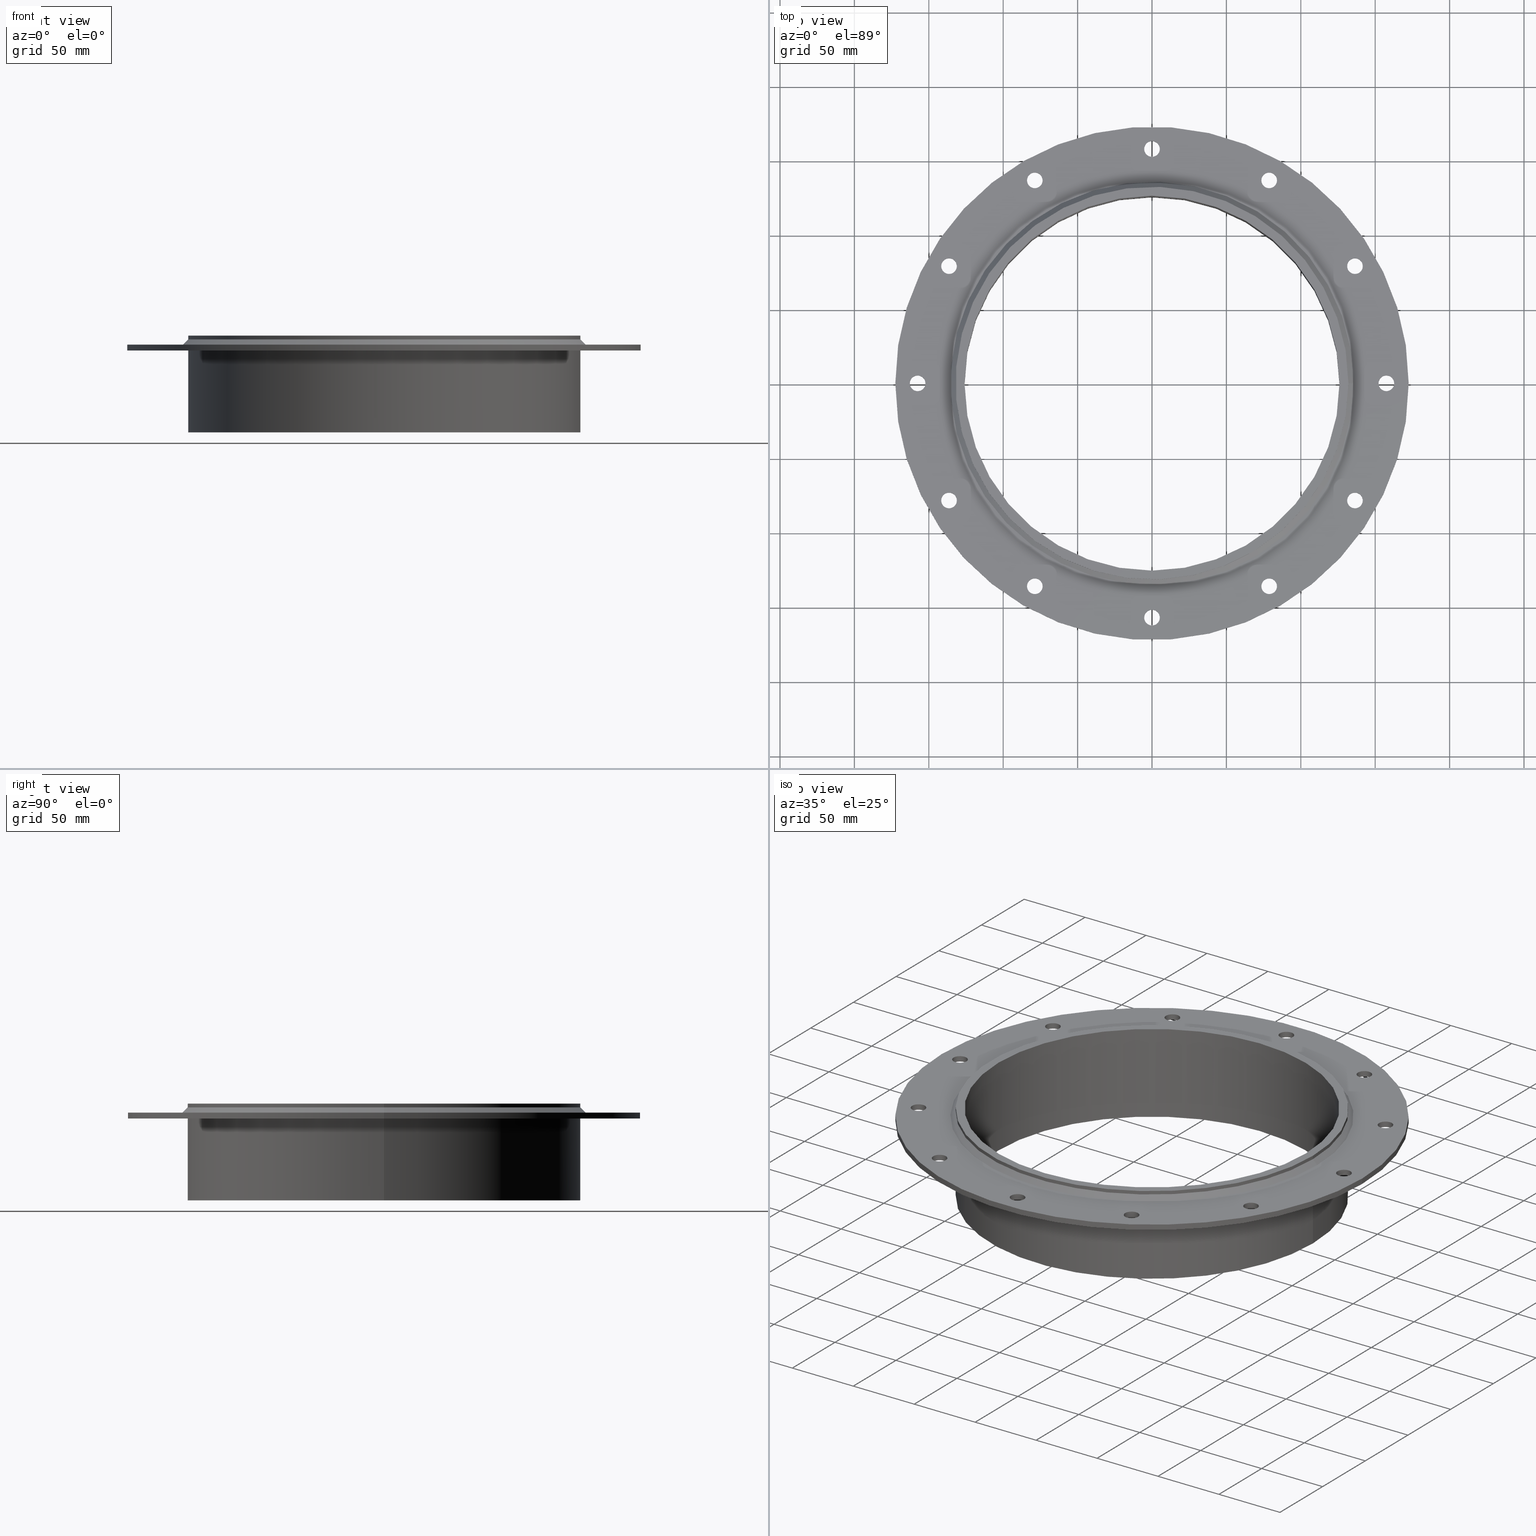
[diagram: canonical four-view strip — front | top / right | iso, engineering-drawing reading convention]
A machine part, canonical four-view strip (front | top / right | iso — engineering-drawing reading convention). The complete STEP part file that produces these views, byte-faithful:
ISO-10303-21;
HEADER;
/****************************************************************
 * Generated by software with PDElib inside                    *
 * PDElib Version v51a, created Wed 11/30/2011                  *
 * ITI Transcendata (http://www.transcendata.com/)              *
 ****************************************************************/
FILE_DESCRIPTION((''),'2;1');
FILE_NAME('C:\\Users\\se-mareng\\Desktop\\RTD\\SLF_\\step\\SLFRS250.stp','2017-02-08T07:40:14',('se-mareng'),(''),'Autodesk Inventor 2013','Autodesk Inventor 2013','');
FILE_SCHEMA(('AUTOMOTIVE_DESIGN { 1 0 10303 214 1 1 1 1 }'));
ENDSEC;
DATA;
#5=APPLICATION_CONTEXT('automotive design');
#6=APPLICATION_PROTOCOL_DEFINITION('International Standard','automotive_design',2001,#5);
#7=PRODUCT_CONTEXT('',#5,'mechanical');
#8=PRODUCT('SLFRS250_old','SLFRS250_old',$,(#7));
#9=PRODUCT_RELATED_PRODUCT_CATEGORY('part',$,(#8));
#10=PRODUCT_DEFINITION_FORMATION('',$,#8);
#11=PRODUCT_DEFINITION_CONTEXT('part definition',#5,'design');
#12=PRODUCT_DEFINITION('',$,#10,#11);
#18=(NAMED_UNIT(*)PLANE_ANGLE_UNIT()SI_UNIT($,.RADIAN.));
#19=DIMENSIONAL_EXPONENTS(0.0,0.0,0.0,0.0,0.0,0.0,0.0);
#20=PLANE_ANGLE_MEASURE_WITH_UNIT(PLANE_ANGLE_MEASURE(0.0174532925),#18);
#24=(CONVERSION_BASED_UNIT('DEGREE',#20)NAMED_UNIT(#19)PLANE_ANGLE_UNIT());
#28=(NAMED_UNIT(*)SI_UNIT($,.STERADIAN.)SOLID_ANGLE_UNIT());
#32=(LENGTH_UNIT()NAMED_UNIT(*)SI_UNIT(.MILLI.,.METRE.));
#34=UNCERTAINTY_MEASURE_WITH_UNIT(LENGTH_MEASURE(0.01),#32,'DISTANCE_ACCURACY_VALUE','');
#36=(GEOMETRIC_REPRESENTATION_CONTEXT(3)GLOBAL_UNCERTAINTY_ASSIGNED_CONTEXT((#34))GLOBAL_UNIT_ASSIGNED_CONTEXT((#24,#28,#32))REPRESENTATION_CONTEXT('None','None'));
#37=AXIS2_PLACEMENT_3D('',#38,#39,#40);
#38=CARTESIAN_POINT('',(0.0,0.0,0.0));
#39=DIRECTION('',(0.0,0.0,1.0));
#40=DIRECTION('',(1.0,0.0,0.0));
#41=SHAPE_REPRESENTATION('',(#37),#36);
#42=PRODUCT_DEFINITION_SHAPE('','',#12);
#43=SHAPE_DEFINITION_REPRESENTATION(#42,#41);
#49=(NAMED_UNIT(*)PLANE_ANGLE_UNIT()SI_UNIT($,.RADIAN.));
#50=DIMENSIONAL_EXPONENTS(0.0,0.0,0.0,0.0,0.0,0.0,0.0);
#51=PLANE_ANGLE_MEASURE_WITH_UNIT(PLANE_ANGLE_MEASURE(0.0174532925),#49);
#55=(CONVERSION_BASED_UNIT('DEGREE',#51)NAMED_UNIT(#50)PLANE_ANGLE_UNIT());
#59=(NAMED_UNIT(*)SI_UNIT($,.STERADIAN.)SOLID_ANGLE_UNIT());
#63=(LENGTH_UNIT()NAMED_UNIT(*)SI_UNIT(.MILLI.,.METRE.));
#65=UNCERTAINTY_MEASURE_WITH_UNIT(LENGTH_MEASURE(0.000001),#63,'DISTANCE_ACCURACY_VALUE','');
#67=(GEOMETRIC_REPRESENTATION_CONTEXT(3)GLOBAL_UNCERTAINTY_ASSIGNED_CONTEXT((#65))GLOBAL_UNIT_ASSIGNED_CONTEXT((#55,#59,#63))REPRESENTATION_CONTEXT('','3D'));
#68=CARTESIAN_POINT('',(-136.39900109604909,78.750000000000028,-498.21438418640304));
#69=DIRECTION('',(0.0,0.0,1.0));
#70=DIRECTION('',(1.0,0.0,0.0));
#71=AXIS2_PLACEMENT_3D('',#68,#69,#70);
#72=CYLINDRICAL_SURFACE('',#71,5.25);
#73=CARTESIAN_POINT('',(-141.64900109604909,78.750000000000028,-10.0));
#74=VERTEX_POINT('',#73);
#75=CARTESIAN_POINT('',(-136.39900109604909,78.750000000000028,-10.0));
#76=DIRECTION('',(0.0,0.0,1.0));
#77=DIRECTION('',(1.0,0.0,0.0));
#78=AXIS2_PLACEMENT_3D('',#75,#76,#77);
#79=CIRCLE('',#78,5.25);
#80=EDGE_CURVE('',#74,#74,#79,.T.);
#81=ORIENTED_EDGE('',*,*,#80,.F.);
#82=EDGE_LOOP('',(#81));
#83=FACE_OUTER_BOUND('',#82,.T.);
#84=CARTESIAN_POINT('',(-131.14900109604909,78.750000000000028,-6.000000000000004));
#85=VERTEX_POINT('',#84);
#86=CARTESIAN_POINT('',(-136.39900109604909,78.750000000000028,-6.000000000000014));
#87=DIRECTION('',(0.0,0.0,-1.0));
#88=DIRECTION('',(1.0,0.0,0.0));
#89=AXIS2_PLACEMENT_3D('',#86,#87,#88);
#90=CIRCLE('',#89,5.25);
#91=EDGE_CURVE('',#85,#85,#90,.T.);
#92=ORIENTED_EDGE('',*,*,#91,.F.);
#93=EDGE_LOOP('',(#92));
#94=FACE_BOUND('',#93,.T.);
#95=ADVANCED_FACE('',(#83,#94),#72,.F.);
#96=CARTESIAN_POINT('',(-136.39900109604912,-78.749999999999972,-498.21438418640304));
#97=DIRECTION('',(0.0,0.0,1.0));
#98=DIRECTION('',(1.0,0.0,0.0));
#99=AXIS2_PLACEMENT_3D('',#96,#97,#98);
#100=CYLINDRICAL_SURFACE('',#99,5.25);
#101=CARTESIAN_POINT('',(-141.64900109604912,-78.749999999999972,-10.0));
#102=VERTEX_POINT('',#101);
#103=CARTESIAN_POINT('',(-136.39900109604912,-78.749999999999972,-10.0));
#104=DIRECTION('',(0.0,0.0,1.0));
#105=DIRECTION('',(1.0,0.0,0.0));
#106=AXIS2_PLACEMENT_3D('',#103,#104,#105);
#107=CIRCLE('',#106,5.25);
#108=EDGE_CURVE('',#102,#102,#107,.T.);
#109=ORIENTED_EDGE('',*,*,#108,.F.);
#110=EDGE_LOOP('',(#109));
#111=FACE_OUTER_BOUND('',#110,.T.);
#112=CARTESIAN_POINT('',(-131.14900109604912,-78.749999999999972,-6.000000000000004));
#113=VERTEX_POINT('',#112);
#114=CARTESIAN_POINT('',(-136.39900109604912,-78.749999999999972,-6.000000000000014));
#115=DIRECTION('',(0.0,0.0,-1.0));
#116=DIRECTION('',(1.0,0.0,0.0));
#117=AXIS2_PLACEMENT_3D('',#114,#115,#116);
#118=CIRCLE('',#117,5.25);
#119=EDGE_CURVE('',#113,#113,#118,.T.);
#120=ORIENTED_EDGE('',*,*,#119,.F.);
#121=EDGE_LOOP('',(#120));
#122=FACE_BOUND('',#121,.T.);
#123=ADVANCED_FACE('',(#111,#122),#100,.F.);
#124=CARTESIAN_POINT('',(-1.776357E-014,-157.5,-498.21438418640304));
#125=DIRECTION('',(0.0,0.0,1.0));
#126=DIRECTION('',(1.0,0.0,0.0));
#127=AXIS2_PLACEMENT_3D('',#124,#125,#126);
#128=CYLINDRICAL_SURFACE('',#127,5.25);
#129=CARTESIAN_POINT('',(-5.250000000000018,-157.5,-10.0));
#130=VERTEX_POINT('',#129);
#131=CARTESIAN_POINT('',(-1.776357E-014,-157.5,-10.0));
#132=DIRECTION('',(0.0,0.0,1.0));
#133=DIRECTION('',(1.0,0.0,0.0));
#134=AXIS2_PLACEMENT_3D('',#131,#132,#133);
#135=CIRCLE('',#134,5.25);
#136=EDGE_CURVE('',#130,#130,#135,.T.);
#137=ORIENTED_EDGE('',*,*,#136,.F.);
#138=EDGE_LOOP('',(#137));
#139=FACE_OUTER_BOUND('',#138,.T.);
#140=CARTESIAN_POINT('',(5.249999999999982,-157.5,-6.000000000000004));
#141=VERTEX_POINT('',#140);
#142=CARTESIAN_POINT('',(-1.776357E-014,-157.5,-6.000000000000014));
#143=DIRECTION('',(0.0,0.0,-1.0));
#144=DIRECTION('',(1.0,0.0,0.0));
#145=AXIS2_PLACEMENT_3D('',#142,#143,#144);
#146=CIRCLE('',#145,5.25);
#147=EDGE_CURVE('',#141,#141,#146,.T.);
#148=ORIENTED_EDGE('',*,*,#147,.F.);
#149=EDGE_LOOP('',(#148));
#150=FACE_BOUND('',#149,.T.);
#151=ADVANCED_FACE('',(#139,#150),#128,.F.);
#152=CARTESIAN_POINT('',(136.39900109604903,-78.750000000000071,-498.21438418640304));
#153=DIRECTION('',(0.0,0.0,1.0));
#154=DIRECTION('',(1.0,0.0,0.0));
#155=AXIS2_PLACEMENT_3D('',#152,#153,#154);
#156=CYLINDRICAL_SURFACE('',#155,5.25);
#157=CARTESIAN_POINT('',(131.14900109604903,-78.750000000000071,-10.0));
#158=VERTEX_POINT('',#157);
#159=CARTESIAN_POINT('',(136.39900109604903,-78.750000000000071,-10.0));
#160=DIRECTION('',(0.0,0.0,1.0));
#161=DIRECTION('',(1.0,0.0,0.0));
#162=AXIS2_PLACEMENT_3D('',#159,#160,#161);
#163=CIRCLE('',#162,5.25);
#164=EDGE_CURVE('',#158,#158,#163,.T.);
#165=ORIENTED_EDGE('',*,*,#164,.F.);
#166=EDGE_LOOP('',(#165));
#167=FACE_OUTER_BOUND('',#166,.T.);
#168=CARTESIAN_POINT('',(141.64900109604903,-78.750000000000071,-6.000000000000004));
#169=VERTEX_POINT('',#168);
#170=CARTESIAN_POINT('',(136.39900109604903,-78.750000000000071,-6.000000000000014));
#171=DIRECTION('',(0.0,0.0,-1.0));
#172=DIRECTION('',(1.0,0.0,0.0));
#173=AXIS2_PLACEMENT_3D('',#170,#171,#172);
#174=CIRCLE('',#173,5.25);
#175=EDGE_CURVE('',#169,#169,#174,.T.);
#176=ORIENTED_EDGE('',*,*,#175,.F.);
#177=EDGE_LOOP('',(#176));
#178=FACE_BOUND('',#177,.T.);
#179=ADVANCED_FACE('',(#167,#178),#156,.F.);
#180=CARTESIAN_POINT('',(136.39900109604918,78.749999999999872,-498.21438418640304));
#181=DIRECTION('',(0.0,0.0,1.0));
#182=DIRECTION('',(1.0,0.0,0.0));
#183=AXIS2_PLACEMENT_3D('',#180,#181,#182);
#184=CYLINDRICAL_SURFACE('',#183,5.25);
#185=CARTESIAN_POINT('',(131.14900109604915,78.749999999999872,-10.0));
#186=VERTEX_POINT('',#185);
#187=CARTESIAN_POINT('',(136.39900109604918,78.749999999999872,-10.0));
#188=DIRECTION('',(0.0,0.0,1.0));
#189=DIRECTION('',(1.0,0.0,0.0));
#190=AXIS2_PLACEMENT_3D('',#187,#188,#189);
#191=CIRCLE('',#190,5.25);
#192=EDGE_CURVE('',#186,#186,#191,.T.);
#193=ORIENTED_EDGE('',*,*,#192,.F.);
#194=EDGE_LOOP('',(#193));
#195=FACE_OUTER_BOUND('',#194,.T.);
#196=CARTESIAN_POINT('',(141.64900109604918,78.749999999999872,-6.000000000000004));
#197=VERTEX_POINT('',#196);
#198=CARTESIAN_POINT('',(136.39900109604918,78.749999999999872,-6.000000000000014));
#199=DIRECTION('',(0.0,0.0,-1.0));
#200=DIRECTION('',(1.0,0.0,0.0));
#201=AXIS2_PLACEMENT_3D('',#198,#199,#200);
#202=CIRCLE('',#201,5.25);
#203=EDGE_CURVE('',#197,#197,#202,.T.);
#204=ORIENTED_EDGE('',*,*,#203,.F.);
#205=EDGE_LOOP('',(#204));
#206=FACE_BOUND('',#205,.T.);
#207=ADVANCED_FACE('',(#195,#206),#184,.F.);
#208=CARTESIAN_POINT('',(0.0,157.5,-498.21438418640304));
#209=DIRECTION('',(0.0,0.0,1.0));
#210=DIRECTION('',(1.0,0.0,0.0));
#211=AXIS2_PLACEMENT_3D('',#208,#209,#210);
#212=CYLINDRICAL_SURFACE('',#211,5.25);
#213=CARTESIAN_POINT('',(-5.25,157.5,-10.0));
#214=VERTEX_POINT('',#213);
#215=CARTESIAN_POINT('',(0.0,157.5,-10.0));
#216=DIRECTION('',(0.0,0.0,1.0));
#217=DIRECTION('',(1.0,0.0,0.0));
#218=AXIS2_PLACEMENT_3D('',#215,#216,#217);
#219=CIRCLE('',#218,5.25);
#220=EDGE_CURVE('',#214,#214,#219,.T.);
#221=ORIENTED_EDGE('',*,*,#220,.F.);
#222=EDGE_LOOP('',(#221));
#223=FACE_OUTER_BOUND('',#222,.T.);
#224=CARTESIAN_POINT('',(5.25,157.5,-6.000000000000004));
#225=VERTEX_POINT('',#224);
#226=CARTESIAN_POINT('',(0.0,157.5,-6.000000000000014));
#227=DIRECTION('',(0.0,0.0,-1.0));
#228=DIRECTION('',(1.0,0.0,0.0));
#229=AXIS2_PLACEMENT_3D('',#226,#227,#228);
#230=CIRCLE('',#229,5.25);
#231=EDGE_CURVE('',#225,#225,#230,.T.);
#232=ORIENTED_EDGE('',*,*,#231,.F.);
#233=EDGE_LOOP('',(#232));
#234=FACE_BOUND('',#233,.T.);
#235=ADVANCED_FACE('',(#223,#234),#212,.F.);
#236=CARTESIAN_POINT('',(78.750000000000071,136.39900109604903,-498.21438418640304));
#237=DIRECTION('',(0.0,0.0,1.0));
#238=DIRECTION('',(1.0,0.0,0.0));
#239=AXIS2_PLACEMENT_3D('',#236,#237,#238);
#240=CYLINDRICAL_SURFACE('',#239,5.25);
#241=CARTESIAN_POINT('',(73.500000000000071,136.39900109604903,-10.0));
#242=VERTEX_POINT('',#241);
#243=CARTESIAN_POINT('',(78.750000000000071,136.39900109604903,-10.0));
#244=DIRECTION('',(0.0,0.0,1.0));
#245=DIRECTION('',(1.0,0.0,0.0));
#246=AXIS2_PLACEMENT_3D('',#243,#244,#245);
#247=CIRCLE('',#246,5.25);
#248=EDGE_CURVE('',#242,#242,#247,.T.);
#249=ORIENTED_EDGE('',*,*,#248,.F.);
#250=EDGE_LOOP('',(#249));
#251=FACE_OUTER_BOUND('',#250,.T.);
#252=CARTESIAN_POINT('',(84.000000000000071,136.39900109604903,-6.000000000000004));
#253=VERTEX_POINT('',#252);
#254=CARTESIAN_POINT('',(78.750000000000071,136.39900109604903,-6.000000000000014));
#255=DIRECTION('',(0.0,0.0,-1.0));
#256=DIRECTION('',(1.0,0.0,0.0));
#257=AXIS2_PLACEMENT_3D('',#254,#255,#256);
#258=CIRCLE('',#257,5.25);
#259=EDGE_CURVE('',#253,#253,#258,.T.);
#260=ORIENTED_EDGE('',*,*,#259,.F.);
#261=EDGE_LOOP('',(#260));
#262=FACE_BOUND('',#261,.T.);
#263=ADVANCED_FACE('',(#251,#262),#240,.F.);
#264=CARTESIAN_POINT('',(157.5,-3.552714E-014,-498.21438418640304));
#265=DIRECTION('',(0.0,0.0,1.0));
#266=DIRECTION('',(1.0,0.0,0.0));
#267=AXIS2_PLACEMENT_3D('',#264,#265,#266);
#268=CYLINDRICAL_SURFACE('',#267,5.25);
#269=CARTESIAN_POINT('',(152.25,-3.617008E-014,-10.0));
#270=VERTEX_POINT('',#269);
#271=CARTESIAN_POINT('',(157.5,-3.552714E-014,-10.0));
#272=DIRECTION('',(0.0,0.0,1.0));
#273=DIRECTION('',(1.0,0.0,0.0));
#274=AXIS2_PLACEMENT_3D('',#271,#272,#273);
#275=CIRCLE('',#274,5.25);
#276=EDGE_CURVE('',#270,#270,#275,.T.);
#277=ORIENTED_EDGE('',*,*,#276,.F.);
#278=EDGE_LOOP('',(#277));
#279=FACE_OUTER_BOUND('',#278,.T.);
#280=CARTESIAN_POINT('',(162.75,-3.552714E-014,-6.000000000000004));
#281=VERTEX_POINT('',#280);
#282=CARTESIAN_POINT('',(157.5,-3.552714E-014,-6.000000000000014));
#283=DIRECTION('',(0.0,0.0,-1.0));
#284=DIRECTION('',(1.0,0.0,0.0));
#285=AXIS2_PLACEMENT_3D('',#282,#283,#284);
#286=CIRCLE('',#285,5.25);
#287=EDGE_CURVE('',#281,#281,#286,.T.);
#288=ORIENTED_EDGE('',*,*,#287,.F.);
#289=EDGE_LOOP('',(#288));
#290=FACE_BOUND('',#289,.T.);
#291=ADVANCED_FACE('',(#279,#290),#268,.F.);
#292=CARTESIAN_POINT('',(78.749999999999972,-136.39900109604912,-498.21438418640304));
#293=DIRECTION('',(0.0,0.0,1.0));
#294=DIRECTION('',(1.0,0.0,0.0));
#295=AXIS2_PLACEMENT_3D('',#292,#293,#294);
#296=CYLINDRICAL_SURFACE('',#295,5.25);
#297=CARTESIAN_POINT('',(73.499999999999972,-136.39900109604912,-10.0));
#298=VERTEX_POINT('',#297);
#299=CARTESIAN_POINT('',(78.749999999999972,-136.39900109604912,-10.0));
#300=DIRECTION('',(0.0,0.0,1.0));
#301=DIRECTION('',(1.0,0.0,0.0));
#302=AXIS2_PLACEMENT_3D('',#299,#300,#301);
#303=CIRCLE('',#302,5.25);
#304=EDGE_CURVE('',#298,#298,#303,.T.);
#305=ORIENTED_EDGE('',*,*,#304,.F.);
#306=EDGE_LOOP('',(#305));
#307=FACE_OUTER_BOUND('',#306,.T.);
#308=CARTESIAN_POINT('',(83.999999999999972,-136.39900109604912,-6.000000000000004));
#309=VERTEX_POINT('',#308);
#310=CARTESIAN_POINT('',(78.749999999999972,-136.39900109604912,-6.000000000000014));
#311=DIRECTION('',(0.0,0.0,-1.0));
#312=DIRECTION('',(1.0,0.0,0.0));
#313=AXIS2_PLACEMENT_3D('',#310,#311,#312);
#314=CIRCLE('',#313,5.25);
#315=EDGE_CURVE('',#309,#309,#314,.T.);
#316=ORIENTED_EDGE('',*,*,#315,.F.);
#317=EDGE_LOOP('',(#316));
#318=FACE_BOUND('',#317,.T.);
#319=ADVANCED_FACE('',(#307,#318),#296,.F.);
#320=CARTESIAN_POINT('',(-78.750000000000043,-136.39900109604906,-498.21438418640304));
#321=DIRECTION('',(0.0,0.0,1.0));
#322=DIRECTION('',(1.0,0.0,0.0));
#323=AXIS2_PLACEMENT_3D('',#320,#321,#322);
#324=CYLINDRICAL_SURFACE('',#323,5.25);
#325=CARTESIAN_POINT('',(-84.000000000000043,-136.39900109604906,-10.0));
#326=VERTEX_POINT('',#325);
#327=CARTESIAN_POINT('',(-78.750000000000043,-136.39900109604906,-10.0));
#328=DIRECTION('',(0.0,0.0,1.0));
#329=DIRECTION('',(1.0,0.0,0.0));
#330=AXIS2_PLACEMENT_3D('',#327,#328,#329);
#331=CIRCLE('',#330,5.25);
#332=EDGE_CURVE('',#326,#326,#331,.T.);
#333=ORIENTED_EDGE('',*,*,#332,.F.);
#334=EDGE_LOOP('',(#333));
#335=FACE_OUTER_BOUND('',#334,.T.);
#336=CARTESIAN_POINT('',(-73.500000000000043,-136.39900109604906,-6.000000000000004));
#337=VERTEX_POINT('',#336);
#338=CARTESIAN_POINT('',(-78.750000000000043,-136.39900109604906,-6.000000000000014));
#339=DIRECTION('',(0.0,0.0,-1.0));
#340=DIRECTION('',(1.0,0.0,0.0));
#341=AXIS2_PLACEMENT_3D('',#338,#339,#340);
#342=CIRCLE('',#341,5.25);
#343=EDGE_CURVE('',#337,#337,#342,.T.);
#344=ORIENTED_EDGE('',*,*,#343,.F.);
#345=EDGE_LOOP('',(#344));
#346=FACE_BOUND('',#345,.T.);
#347=ADVANCED_FACE('',(#335,#346),#324,.F.);
#348=CARTESIAN_POINT('',(-157.50000000000006,8.881784E-015,-498.21438418640304));
#349=DIRECTION('',(0.0,0.0,1.0));
#350=DIRECTION('',(1.0,0.0,0.0));
#351=AXIS2_PLACEMENT_3D('',#348,#349,#350);
#352=CYLINDRICAL_SURFACE('',#351,5.25);
#353=CARTESIAN_POINT('',(-162.75000000000006,8.238844E-015,-10.0));
#354=VERTEX_POINT('',#353);
#355=CARTESIAN_POINT('',(-157.50000000000006,8.881784E-015,-10.0));
#356=DIRECTION('',(0.0,0.0,1.0));
#357=DIRECTION('',(1.0,0.0,0.0));
#358=AXIS2_PLACEMENT_3D('',#355,#356,#357);
#359=CIRCLE('',#358,5.25);
#360=EDGE_CURVE('',#354,#354,#359,.T.);
#361=ORIENTED_EDGE('',*,*,#360,.F.);
#362=EDGE_LOOP('',(#361));
#363=FACE_OUTER_BOUND('',#362,.T.);
#364=CARTESIAN_POINT('',(-152.25000000000006,8.881784E-015,-6.000000000000004));
#365=VERTEX_POINT('',#364);
#366=CARTESIAN_POINT('',(-157.50000000000006,8.881784E-015,-6.000000000000014));
#367=DIRECTION('',(0.0,0.0,-1.0));
#368=DIRECTION('',(1.0,0.0,0.0));
#369=AXIS2_PLACEMENT_3D('',#366,#367,#368);
#370=CIRCLE('',#369,5.25);
#371=EDGE_CURVE('',#365,#365,#370,.T.);
#372=ORIENTED_EDGE('',*,*,#371,.F.);
#373=EDGE_LOOP('',(#372));
#374=FACE_BOUND('',#373,.T.);
#375=ADVANCED_FACE('',(#363,#374),#352,.F.);
#376=CARTESIAN_POINT('',(-78.749999999999972,136.39900109604909,-498.21438418640304));
#377=DIRECTION('',(0.0,0.0,1.0));
#378=DIRECTION('',(1.0,0.0,0.0));
#379=AXIS2_PLACEMENT_3D('',#376,#377,#378);
#380=CYLINDRICAL_SURFACE('',#379,5.25);
#381=CARTESIAN_POINT('',(-83.999999999999972,136.39900109604909,-10.0));
#382=VERTEX_POINT('',#381);
#383=CARTESIAN_POINT('',(-78.749999999999972,136.39900109604909,-10.0));
#384=DIRECTION('',(0.0,0.0,1.0));
#385=DIRECTION('',(1.0,0.0,0.0));
#386=AXIS2_PLACEMENT_3D('',#383,#384,#385);
#387=CIRCLE('',#386,5.25);
#388=EDGE_CURVE('',#382,#382,#387,.T.);
#389=ORIENTED_EDGE('',*,*,#388,.F.);
#390=EDGE_LOOP('',(#389));
#391=FACE_OUTER_BOUND('',#390,.T.);
#392=CARTESIAN_POINT('',(-73.499999999999972,136.39900109604909,-6.000000000000004));
#393=VERTEX_POINT('',#392);
#394=CARTESIAN_POINT('',(-78.749999999999972,136.39900109604909,-6.000000000000014));
#395=DIRECTION('',(0.0,0.0,-1.0));
#396=DIRECTION('',(1.0,0.0,0.0));
#397=AXIS2_PLACEMENT_3D('',#394,#395,#396);
#398=CIRCLE('',#397,5.25);
#399=EDGE_CURVE('',#393,#393,#398,.T.);
#400=ORIENTED_EDGE('',*,*,#399,.F.);
#401=EDGE_LOOP('',(#400));
#402=FACE_BOUND('',#401,.T.);
#403=ADVANCED_FACE('',(#391,#402),#380,.F.);
#404=CARTESIAN_POINT('',(0.0,0.0,-4.250000000000003));
#405=DIRECTION('',(0.0,0.0,-1.0));
#406=DIRECTION('',(-1.0,0.0,0.0));
#407=AXIS2_PLACEMENT_3D('',#404,#405,#406);
#408=CONICAL_SURFACE('',#407,133.75,44.999999999999979);
#409=CARTESIAN_POINT('',(135.5,1.659396E-014,-6.000000000000004));
#410=VERTEX_POINT('',#409);
#411=CARTESIAN_POINT('',(0.0,0.0,-6.000000000000004));
#412=DIRECTION('',(0.0,0.0,1.0));
#413=DIRECTION('',(-1.0,0.0,0.0));
#414=AXIS2_PLACEMENT_3D('',#411,#412,#413);
#415=CIRCLE('',#414,135.5);
#416=EDGE_CURVE('',#410,#410,#415,.T.);
#417=ORIENTED_EDGE('',*,*,#416,.T.);
#418=EDGE_LOOP('',(#417));
#419=FACE_OUTER_BOUND('',#418,.T.);
#420=CARTESIAN_POINT('',(132.0,-1.616534E-014,-2.500000000000003));
#421=VERTEX_POINT('',#420);
#422=CARTESIAN_POINT('',(0.0,0.0,-2.500000000000003));
#423=DIRECTION('',(0.0,0.0,-1.0));
#424=DIRECTION('',(-1.0,0.0,0.0));
#425=AXIS2_PLACEMENT_3D('',#422,#423,#424);
#426=CIRCLE('',#425,132.0);
#427=EDGE_CURVE('',#421,#421,#426,.T.);
#428=ORIENTED_EDGE('',*,*,#427,.T.);
#429=EDGE_LOOP('',(#428));
#430=FACE_BOUND('',#429,.T.);
#431=ADVANCED_FACE('',(#419,#430),#408,.T.);
#432=CARTESIAN_POINT('',(-7.252548E-015,-2.746059E-015,-6.000000000000004));
#433=DIRECTION('',(0.0,0.0,1.0));
#434=DIRECTION('',(1.0,0.0,0.0));
#435=AXIS2_PLACEMENT_3D('',#432,#433,#434);
#436=PLANE('',#435);
#437=CARTESIAN_POINT('',(172.5,2.112516E-014,-6.000000000000002));
#438=VERTEX_POINT('',#437);
#439=CARTESIAN_POINT('',(0.0,0.0,-6.000000000000002));
#440=DIRECTION('',(0.0,0.0,1.0));
#441=DIRECTION('',(-1.0,0.0,0.0));
#442=AXIS2_PLACEMENT_3D('',#439,#440,#441);
#443=CIRCLE('',#442,172.5);
#444=EDGE_CURVE('',#438,#438,#443,.T.);
#445=ORIENTED_EDGE('',*,*,#444,.T.);
#446=EDGE_LOOP('',(#445));
#447=FACE_OUTER_BOUND('',#446,.T.);
#448=ORIENTED_EDGE('',*,*,#91,.T.);
#449=EDGE_LOOP('',(#448));
#450=FACE_BOUND('',#449,.T.);
#451=ORIENTED_EDGE('',*,*,#119,.T.);
#452=EDGE_LOOP('',(#451));
#453=FACE_BOUND('',#452,.T.);
#454=ORIENTED_EDGE('',*,*,#147,.T.);
#455=EDGE_LOOP('',(#454));
#456=FACE_BOUND('',#455,.T.);
#457=ORIENTED_EDGE('',*,*,#175,.T.);
#458=EDGE_LOOP('',(#457));
#459=FACE_BOUND('',#458,.T.);
#460=ORIENTED_EDGE('',*,*,#203,.T.);
#461=EDGE_LOOP('',(#460));
#462=FACE_BOUND('',#461,.T.);
#463=ORIENTED_EDGE('',*,*,#231,.T.);
#464=EDGE_LOOP('',(#463));
#465=FACE_BOUND('',#464,.T.);
#466=ORIENTED_EDGE('',*,*,#259,.T.);
#467=EDGE_LOOP('',(#466));
#468=FACE_BOUND('',#467,.T.);
#469=ORIENTED_EDGE('',*,*,#287,.T.);
#470=EDGE_LOOP('',(#469));
#471=FACE_BOUND('',#470,.T.);
#472=ORIENTED_EDGE('',*,*,#315,.T.);
#473=EDGE_LOOP('',(#472));
#474=FACE_BOUND('',#473,.T.);
#475=ORIENTED_EDGE('',*,*,#343,.T.);
#476=EDGE_LOOP('',(#475));
#477=FACE_BOUND('',#476,.T.);
#478=ORIENTED_EDGE('',*,*,#371,.T.);
#479=EDGE_LOOP('',(#478));
#480=FACE_BOUND('',#479,.T.);
#481=ORIENTED_EDGE('',*,*,#399,.T.);
#482=EDGE_LOOP('',(#481));
#483=FACE_BOUND('',#482,.T.);
#484=ORIENTED_EDGE('',*,*,#416,.F.);
#485=EDGE_LOOP('',(#484));
#486=FACE_BOUND('',#485,.T.);
#487=ADVANCED_FACE('',(#447,#450,#453,#456,#459,#462,#465,#468,#471,#474,#477,#480,#483,#486),#436,.T.);
#488=CARTESIAN_POINT('',(0.0,0.0,0.0));
#489=DIRECTION('',(0.0,0.0,-1.0));
#490=DIRECTION('',(-1.0,0.0,0.0));
#491=AXIS2_PLACEMENT_3D('',#488,#489,#490);
#492=CYLINDRICAL_SURFACE('',#491,132.0);
#493=CARTESIAN_POINT('',(132.0,1.616534E-014,0.0));
#494=VERTEX_POINT('',#493);
#495=CARTESIAN_POINT('',(0.0,0.0,0.0));
#496=DIRECTION('',(0.0,0.0,-1.0));
#497=DIRECTION('',(-1.0,0.0,0.0));
#498=AXIS2_PLACEMENT_3D('',#495,#496,#497);
#499=CIRCLE('',#498,132.0);
#500=EDGE_CURVE('',#494,#494,#499,.T.);
#501=ORIENTED_EDGE('',*,*,#500,.T.);
#502=EDGE_LOOP('',(#501));
#503=FACE_OUTER_BOUND('',#502,.T.);
#504=ORIENTED_EDGE('',*,*,#427,.F.);
#505=EDGE_LOOP('',(#504));
#506=FACE_BOUND('',#505,.T.);
#507=ADVANCED_FACE('',(#503,#506),#492,.T.);
#508=CARTESIAN_POINT('',(-7.252548E-015,-2.746059E-015,-10.000000000000004));
#509=DIRECTION('',(0.0,0.0,1.0));
#510=DIRECTION('',(1.0,0.0,0.0));
#511=AXIS2_PLACEMENT_3D('',#508,#509,#510);
#512=PLANE('',#511);
#513=CARTESIAN_POINT('',(172.5,2.112516E-014,-10.0));
#514=VERTEX_POINT('',#513);
#515=CARTESIAN_POINT('',(0.0,0.0,-10.0));
#516=DIRECTION('',(0.0,0.0,-1.0));
#517=DIRECTION('',(-1.0,0.0,0.0));
#518=AXIS2_PLACEMENT_3D('',#515,#516,#517);
#519=CIRCLE('',#518,172.5);
#520=EDGE_CURVE('',#514,#514,#519,.T.);
#521=ORIENTED_EDGE('',*,*,#520,.T.);
#522=EDGE_LOOP('',(#521));
#523=FACE_OUTER_BOUND('',#522,.T.);
#524=ORIENTED_EDGE('',*,*,#80,.T.);
#525=EDGE_LOOP('',(#524));
#526=FACE_BOUND('',#525,.T.);
#527=ORIENTED_EDGE('',*,*,#108,.T.);
#528=EDGE_LOOP('',(#527));
#529=FACE_BOUND('',#528,.T.);
#530=ORIENTED_EDGE('',*,*,#136,.T.);
#531=EDGE_LOOP('',(#530));
#532=FACE_BOUND('',#531,.T.);
#533=ORIENTED_EDGE('',*,*,#164,.T.);
#534=EDGE_LOOP('',(#533));
#535=FACE_BOUND('',#534,.T.);
#536=ORIENTED_EDGE('',*,*,#192,.T.);
#537=EDGE_LOOP('',(#536));
#538=FACE_BOUND('',#537,.T.);
#539=ORIENTED_EDGE('',*,*,#220,.T.);
#540=EDGE_LOOP('',(#539));
#541=FACE_BOUND('',#540,.T.);
#542=ORIENTED_EDGE('',*,*,#248,.T.);
#543=EDGE_LOOP('',(#542));
#544=FACE_BOUND('',#543,.T.);
#545=ORIENTED_EDGE('',*,*,#276,.T.);
#546=EDGE_LOOP('',(#545));
#547=FACE_BOUND('',#546,.T.);
#548=ORIENTED_EDGE('',*,*,#304,.T.);
#549=EDGE_LOOP('',(#548));
#550=FACE_BOUND('',#549,.T.);
#551=ORIENTED_EDGE('',*,*,#332,.T.);
#552=EDGE_LOOP('',(#551));
#553=FACE_BOUND('',#552,.T.);
#554=ORIENTED_EDGE('',*,*,#360,.T.);
#555=EDGE_LOOP('',(#554));
#556=FACE_BOUND('',#555,.T.);
#557=ORIENTED_EDGE('',*,*,#388,.T.);
#558=EDGE_LOOP('',(#557));
#559=FACE_BOUND('',#558,.T.);
#560=CARTESIAN_POINT('',(132.0,1.616534E-014,-10.0));
#561=VERTEX_POINT('',#560);
#562=CARTESIAN_POINT('',(0.0,0.0,-10.000000000000004));
#563=DIRECTION('',(0.0,0.0,-1.0));
#564=DIRECTION('',(-1.0,0.0,0.0));
#565=AXIS2_PLACEMENT_3D('',#562,#563,#564);
#566=CIRCLE('',#565,132.0);
#567=EDGE_CURVE('',#561,#561,#566,.T.);
#568=ORIENTED_EDGE('',*,*,#567,.F.);
#569=EDGE_LOOP('',(#568));
#570=FACE_BOUND('',#569,.T.);
#571=ADVANCED_FACE('',(#523,#526,#529,#532,#535,#538,#541,#544,#547,#550,#553,#556,#559,#570),#512,.F.);
#572=CARTESIAN_POINT('',(0.0,0.0,-8.0));
#573=DIRECTION('',(0.0,0.0,1.0));
#574=DIRECTION('',(-1.0,0.0,0.0));
#575=AXIS2_PLACEMENT_3D('',#572,#573,#574);
#576=CYLINDRICAL_SURFACE('',#575,172.5);
#577=ORIENTED_EDGE('',*,*,#520,.F.);
#578=EDGE_LOOP('',(#577));
#579=FACE_OUTER_BOUND('',#578,.T.);
#580=ORIENTED_EDGE('',*,*,#444,.F.);
#581=EDGE_LOOP('',(#580));
#582=FACE_BOUND('',#581,.T.);
#583=ADVANCED_FACE('',(#579,#582),#576,.T.);
#584=CARTESIAN_POINT('',(0.0,0.0,-378.96833640820171));
#585=DIRECTION('',(0.0,0.0,1.0));
#586=DIRECTION('',(1.0,0.0,0.0));
#587=AXIS2_PLACEMENT_3D('',#584,#585,#586);
#588=CYLINDRICAL_SURFACE('',#587,126.00000000000001);
#589=CARTESIAN_POINT('',(-126.00000000000001,-1.543055E-014,-65.0));
#590=VERTEX_POINT('',#589);
#591=CARTESIAN_POINT('',(0.0,0.0,-65.0));
#592=DIRECTION('',(0.0,0.0,1.0));
#593=DIRECTION('',(1.0,0.0,0.0));
#594=AXIS2_PLACEMENT_3D('',#591,#592,#593);
#595=CIRCLE('',#594,126.00000000000001);
#596=EDGE_CURVE('',#590,#590,#595,.T.);
#597=ORIENTED_EDGE('',*,*,#596,.F.);
#598=EDGE_LOOP('',(#597));
#599=FACE_OUTER_BOUND('',#598,.T.);
#600=CARTESIAN_POINT('',(126.00000000000001,0.0,0.0));
#601=VERTEX_POINT('',#600);
#602=CARTESIAN_POINT('',(0.0,0.0,0.0));
#603=DIRECTION('',(0.0,0.0,-1.0));
#604=DIRECTION('',(1.0,0.0,0.0));
#605=AXIS2_PLACEMENT_3D('',#602,#603,#604);
#606=CIRCLE('',#605,126.00000000000001);
#607=EDGE_CURVE('',#601,#601,#606,.T.);
#608=ORIENTED_EDGE('',*,*,#607,.F.);
#609=EDGE_LOOP('',(#608));
#610=FACE_BOUND('',#609,.T.);
#611=ADVANCED_FACE('',(#599,#610),#588,.F.);
#612=CARTESIAN_POINT('',(0.0,0.0,0.0));
#613=DIRECTION('',(0.0,0.0,-1.0));
#614=DIRECTION('',(-1.0,0.0,0.0));
#615=AXIS2_PLACEMENT_3D('',#612,#613,#614);
#616=CYLINDRICAL_SURFACE('',#615,132.0);
#617=ORIENTED_EDGE('',*,*,#567,.T.);
#618=EDGE_LOOP('',(#617));
#619=FACE_OUTER_BOUND('',#618,.T.);
#620=CARTESIAN_POINT('',(132.0,1.616534E-014,-65.0));
#621=VERTEX_POINT('',#620);
#622=CARTESIAN_POINT('',(0.0,0.0,-65.0));
#623=DIRECTION('',(0.0,0.0,-1.0));
#624=DIRECTION('',(-1.0,0.0,0.0));
#625=AXIS2_PLACEMENT_3D('',#622,#623,#624);
#626=CIRCLE('',#625,132.0);
#627=EDGE_CURVE('',#621,#621,#626,.T.);
#628=ORIENTED_EDGE('',*,*,#627,.F.);
#629=EDGE_LOOP('',(#628));
#630=FACE_BOUND('',#629,.T.);
#631=ADVANCED_FACE('',(#619,#630),#616,.T.);
#632=CARTESIAN_POINT('',(-8.524311E-015,0.0,-65.0));
#633=DIRECTION('',(0.0,0.0,1.0));
#634=DIRECTION('',(1.0,0.0,0.0));
#635=AXIS2_PLACEMENT_3D('',#632,#633,#634);
#636=PLANE('',#635);
#637=ORIENTED_EDGE('',*,*,#627,.T.);
#638=EDGE_LOOP('',(#637));
#639=FACE_OUTER_BOUND('',#638,.T.);
#640=ORIENTED_EDGE('',*,*,#596,.T.);
#641=EDGE_LOOP('',(#640));
#642=FACE_BOUND('',#641,.T.);
#643=ADVANCED_FACE('',(#639,#642),#636,.F.);
#644=CARTESIAN_POINT('',(-8.524311E-015,0.0,0.0));
#645=DIRECTION('',(0.0,0.0,1.0));
#646=DIRECTION('',(1.0,0.0,0.0));
#647=AXIS2_PLACEMENT_3D('',#644,#645,#646);
#648=PLANE('',#647);
#649=ORIENTED_EDGE('',*,*,#500,.F.);
#650=EDGE_LOOP('',(#649));
#651=FACE_OUTER_BOUND('',#650,.T.);
#652=ORIENTED_EDGE('',*,*,#607,.T.);
#653=EDGE_LOOP('',(#652));
#654=FACE_BOUND('',#653,.T.);
#655=ADVANCED_FACE('',(#651,#654),#648,.T.);
#656=CLOSED_SHELL('',(#95,#123,#151,#179,#207,#235,#263,#291,#319,#347,#375,#403,#431,#487,#507,#571,#583,#611,#631,#643,#655));
#657=MANIFOLD_SOLID_BREP('Solid1',#656);
#658=COLOUR_RGB('',0.800000011920929,0.796078443527222,0.701960802078247);
#659=FILL_AREA_STYLE_COLOUR('',#658);
#660=FILL_AREA_STYLE('',(#659));
#661=SURFACE_STYLE_FILL_AREA(#660);
#662=SURFACE_SIDE_STYLE('',(#661));
#663=SURFACE_STYLE_USAGE(.BOTH.,#662);
#664=PRESENTATION_STYLE_ASSIGNMENT((#663));
#665=STYLED_ITEM('',(#664,#673),#657);
#666=MECHANICAL_DESIGN_GEOMETRIC_PRESENTATION_REPRESENTATION('',(#665),#67);
#667=COLOUR_RGB('204,203,179',0.800000011920929,0.796078443527222,0.701960802078247);
#668=FILL_AREA_STYLE_COLOUR('204,203,179',#667);
#669=FILL_AREA_STYLE('204,203,179',(#668));
#670=SURFACE_STYLE_FILL_AREA(#669);
#671=SURFACE_SIDE_STYLE('204,203,179',(#670));
#672=SURFACE_STYLE_USAGE(.BOTH.,#671);
#673=PRESENTATION_STYLE_ASSIGNMENT((#672));
#674=ADVANCED_BREP_SHAPE_REPRESENTATION('ABSR',(#657),#36);
#675=SHAPE_REPRESENTATION_RELATIONSHIP('SRR','None',#674,#41);
ENDSEC;
END-ISO-10303-21;
